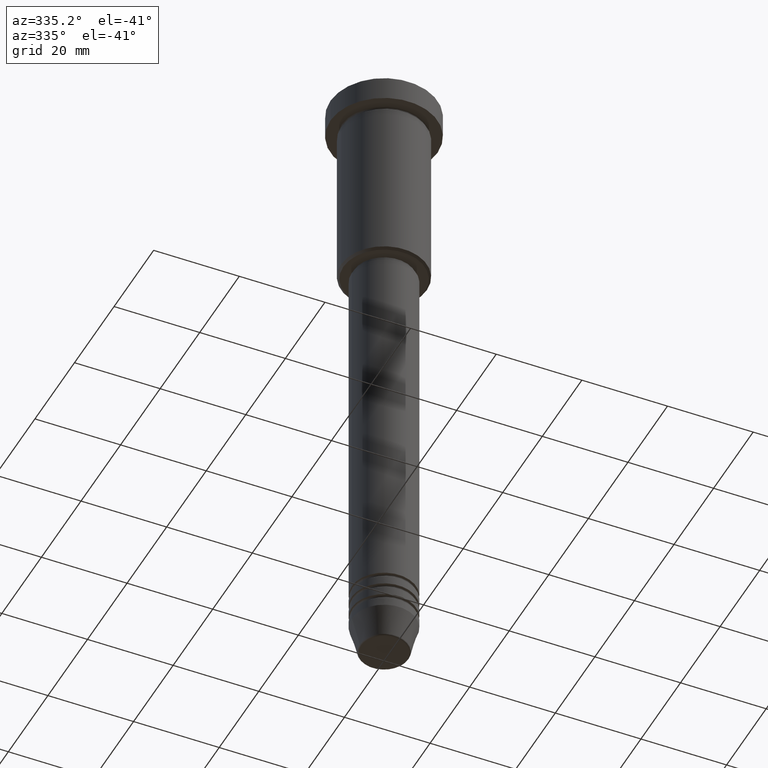
[diagram: clean part render]
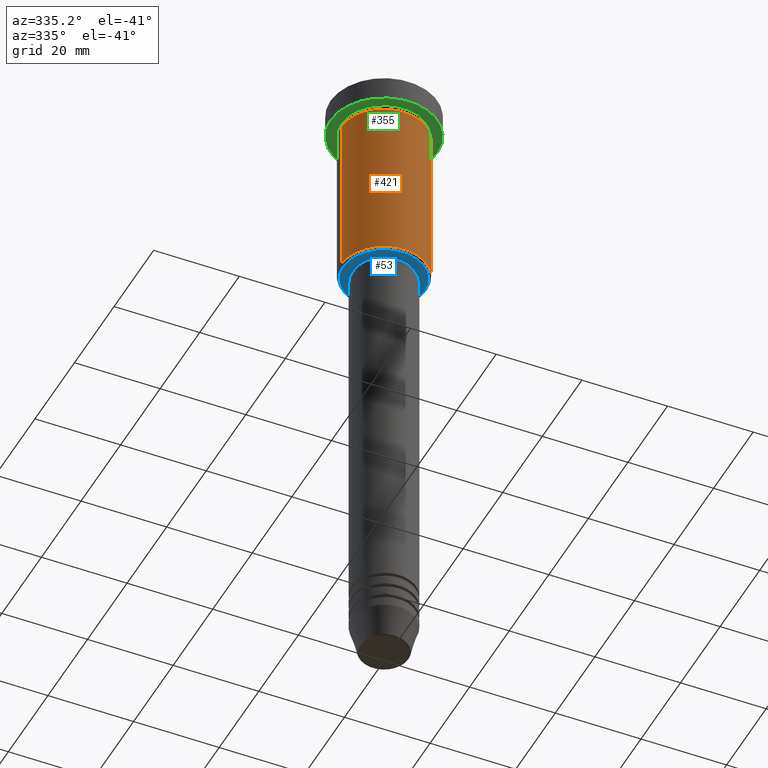
[diagram: same view with three faces highlighted in distinct colors, each labeled with its STEP entity id]
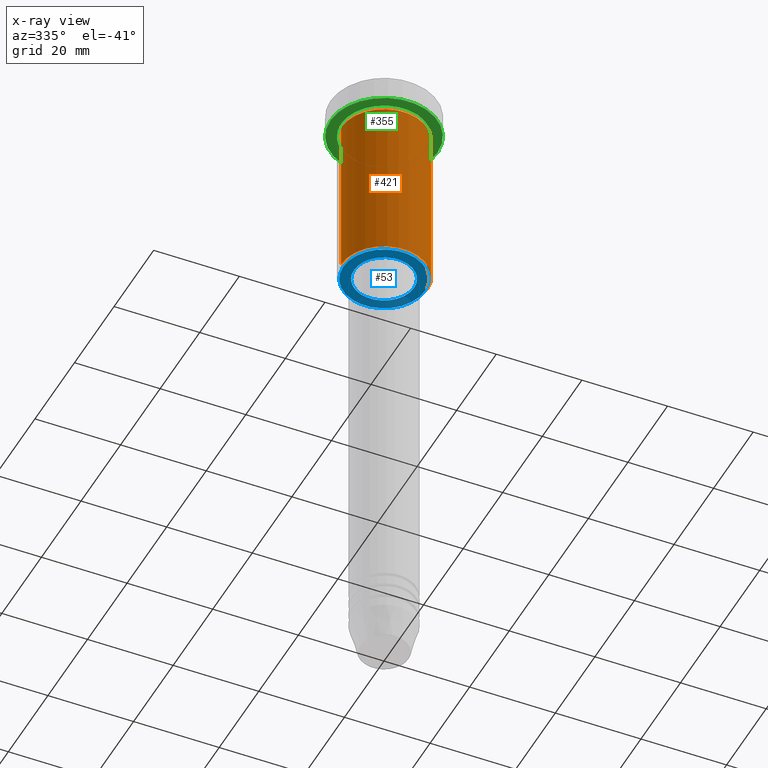
[diagram: x-ray of the same camera — body ghosted, the three highlighted faces saturated]
A machine part, auxiliary view with three faces highlighted in distinct colors.
The next image is the same camera in x-ray (body ghosted, the three faces saturated) — at least one of them is partly hidden behind the body in this view.
Their STEP definitions:

[orange] entity #421 — the highlighted cylindrical surface (partial cylindrical patch) has radius 10 mm, axis along (-0, -0, 1).
#3 = DIRECTION ( 'NONE',  ( 1.000000000000000000, 0.000000000000000000, 0.000000000000000000 ) ) ;
#6 = AXIS2_PLACEMENT_3D ( 'NONE', #1175, #903, #721 ) ;
#61 = EDGE_CURVE ( 'NONE', #418, #946, #139, .T. ) ;
#90 = FACE_OUTER_BOUND ( 'NONE', #367, .T. ) ;
#96 = DIRECTION ( 'NONE',  ( -0.000000000000000000, -0.000000000000000000, 1.000000000000000000 ) ) ;
#137 = ORIENTED_EDGE ( 'NONE', *, *, #723, .F. ) ;
#139 = CIRCLE ( 'NONE', #203, 10.00000000000000000 ) ;
#181 = DIRECTION ( 'NONE',  ( -0.000000000000000000, -0.000000000000000000, 1.000000000000000000 ) ) ;
#197 = DIRECTION ( 'NONE',  ( -0.000000000000000000, -0.000000000000000000, 1.000000000000000000 ) ) ;
#203 = AXIS2_PLACEMENT_3D ( 'NONE', #720, #181, #725 ) ;
#259 = VERTEX_POINT ( 'NONE', #1109 ) ;
#282 = CARTESIAN_POINT ( 'NONE',  ( -10.00000000000000000, 1.224646799147353256E-15, -45.50000000000001421 ) ) ;
#329 = AXIS2_PLACEMENT_3D ( 'NONE', #455, #197, #3 ) ;
#334 = VECTOR ( 'NONE', #96, 1000.000000000000000 ) ;
#337 = EDGE_CURVE ( 'NONE', #259, #898, #562, .T. ) ;
#367 = EDGE_LOOP ( 'NONE', ( #137, #964, #1065, #1029 ) ) ;
#377 = CYLINDRICAL_SURFACE ( 'NONE', #6, 10.00000000000000000 ) ;
#408 = VECTOR ( 'NONE', #727, 1000.000000000000000 ) ;
#418 = VERTEX_POINT ( 'NONE', #282 ) ;
#421 = ADVANCED_FACE ( 'NONE', ( #90 ), #377, .T. ) ;
#422 = EDGE_CURVE ( 'NONE', #946, #898, #1078, .T. ) ;
#455 = CARTESIAN_POINT ( 'NONE',  ( 0.000000000000000000, 0.000000000000000000, -6.999999999999996447 ) ) ;
#468 = CARTESIAN_POINT ( 'NONE',  ( 10.00000000000000000, 0.000000000000000000, -45.50000000000001421 ) ) ;
#562 = CIRCLE ( 'NONE', #329, 10.00000000000000000 ) ;
#720 = CARTESIAN_POINT ( 'NONE',  ( 0.000000000000000000, 0.000000000000000000, -45.50000000000001421 ) ) ;
#721 = DIRECTION ( 'NONE',  ( 1.000000000000000000, 0.000000000000000000, 0.000000000000000000 ) ) ;
#723 = EDGE_CURVE ( 'NONE', #418, #259, #1094, .T. ) ;
#725 = DIRECTION ( 'NONE',  ( -1.000000000000000000, 0.000000000000000000, 0.000000000000000000 ) ) ;
#727 = DIRECTION ( 'NONE',  ( -0.000000000000000000, -0.000000000000000000, 1.000000000000000000 ) ) ;
#898 = VERTEX_POINT ( 'NONE', #1093 ) ;
#903 = DIRECTION ( 'NONE',  ( -0.000000000000000000, -0.000000000000000000, 1.000000000000000000 ) ) ;
#946 = VERTEX_POINT ( 'NONE', #468 ) ;
#964 = ORIENTED_EDGE ( 'NONE', *, *, #61, .T. ) ;
#1029 = ORIENTED_EDGE ( 'NONE', *, *, #337, .F. ) ;
#1065 = ORIENTED_EDGE ( 'NONE', *, *, #422, .T. ) ;
#1078 = LINE ( 'NONE', #1085, #408 ) ;
#1085 = CARTESIAN_POINT ( 'NONE',  ( 10.00000000000000000, 0.000000000000000000, 0.000000000000000000 ) ) ;
#1088 = CARTESIAN_POINT ( 'NONE',  ( -10.00000000000000000, 1.224646799147353256E-15, 0.000000000000000000 ) ) ;
#1093 = CARTESIAN_POINT ( 'NONE',  ( 10.00000000000000000, 0.000000000000000000, -6.999999999999996447 ) ) ;
#1094 = LINE ( 'NONE', #1088, #334 ) ;
#1109 = CARTESIAN_POINT ( 'NONE',  ( -10.00000000000000000, 1.224646799147353256E-15, -6.999999999999996447 ) ) ;
#1175 = CARTESIAN_POINT ( 'NONE',  ( 0.000000000000000000, 0.000000000000000000, 0.000000000000000000 ) ) ;

[blue] entity #53 — the highlighted planar face has unit normal (0, 0, -1).
#9 = DIRECTION ( 'NONE',  ( -1.000000000000000000, 0.000000000000000000, -0.000000000000000000 ) ) ;
#45 = CARTESIAN_POINT ( 'NONE',  ( 0.000000000000000000, 0.000000000000000000, -45.99999999999998579 ) ) ;
#53 = ADVANCED_FACE ( 'NONE', ( #365, #816 ), #351, .T. ) ;
#63 = DIRECTION ( 'NONE',  ( 1.000000000000000000, 0.000000000000000000, 0.000000000000000000 ) ) ;
#102 = CARTESIAN_POINT ( 'NONE',  ( 6.999999999999999112, 0.000000000000000000, -45.99999999999998579 ) ) ;
#119 = DIRECTION ( 'NONE',  ( -0.000000000000000000, -0.000000000000000000, 1.000000000000000000 ) ) ;
#145 = VERTEX_POINT ( 'NONE', #102 ) ;
#169 = DIRECTION ( 'NONE',  ( -0.000000000000000000, -0.000000000000000000, 1.000000000000000000 ) ) ;
#222 = DIRECTION ( 'NONE',  ( 1.000000000000000000, 0.000000000000000000, 0.000000000000000000 ) ) ;
#240 = EDGE_CURVE ( 'NONE', #145, #959, #1163, .T. ) ;
#264 = CARTESIAN_POINT ( 'NONE',  ( 0.000000000000000000, 10.00000000000000000, -45.99999999999998579 ) ) ;
#277 = ORIENTED_EDGE ( 'NONE', *, *, #1154, .T. ) ;
#308 = CARTESIAN_POINT ( 'NONE',  ( 0.000000000000000000, 0.000000000000000000, -45.99999999999998579 ) ) ;
#310 = EDGE_CURVE ( 'NONE', #778, #806, #766, .T. ) ;
#326 = ORIENTED_EDGE ( 'NONE', *, *, #240, .T. ) ;
#351 = PLANE ( 'NONE',  #995 ) ;
#365 = FACE_OUTER_BOUND ( 'NONE', #378, .T. ) ;
#378 = EDGE_LOOP ( 'NONE', ( #586, #277 ) ) ;
#384 = CARTESIAN_POINT ( 'NONE',  ( -6.999999999999999112, 8.572527594031472204E-16, -45.99999999999998579 ) ) ;
#423 = AXIS2_PLACEMENT_3D ( 'NONE', #308, #119, #222 ) ;
#460 = DIRECTION ( 'NONE',  ( 0.000000000000000000, 0.000000000000000000, -1.000000000000000000 ) ) ;
#495 = DIRECTION ( 'NONE',  ( 0.000000000000000000, 0.000000000000000000, -1.000000000000000000 ) ) ;
#586 = ORIENTED_EDGE ( 'NONE', *, *, #310, .T. ) ;
#590 = EDGE_CURVE ( 'NONE', #959, #145, #736, .T. ) ;
#605 = CARTESIAN_POINT ( 'NONE',  ( 0.000000000000000000, 0.000000000000000000, -45.99999999999998579 ) ) ;
#666 = ORIENTED_EDGE ( 'NONE', *, *, #590, .T. ) ;
#685 = EDGE_LOOP ( 'NONE', ( #326, #666 ) ) ;
#736 = CIRCLE ( 'NONE', #832, 6.999999999999999112 ) ;
#737 = CIRCLE ( 'NONE', #888, 9.500000000000035527 ) ;
#766 = CIRCLE ( 'NONE', #1147, 9.500000000000035527 ) ;
#778 = VERTEX_POINT ( 'NONE', #1178 ) ;
#806 = VERTEX_POINT ( 'NONE', #1020 ) ;
#816 = FACE_BOUND ( 'NONE', #685, .T. ) ;
#832 = AXIS2_PLACEMENT_3D ( 'NONE', #605, #169, #63 ) ;
#870 = DIRECTION ( 'NONE',  ( 0.000000000000000000, 0.000000000000000000, -1.000000000000000000 ) ) ;
#888 = AXIS2_PLACEMENT_3D ( 'NONE', #1122, #870, #1140 ) ;
#949 = DIRECTION ( 'NONE',  ( -1.000000000000000000, 0.000000000000000000, 0.000000000000000000 ) ) ;
#959 = VERTEX_POINT ( 'NONE', #384 ) ;
#995 = AXIS2_PLACEMENT_3D ( 'NONE', #264, #460, #9 ) ;
#1020 = CARTESIAN_POINT ( 'NONE',  ( -9.500000000000035527, 1.194030629168671639E-15, -45.99999999999998579 ) ) ;
#1122 = CARTESIAN_POINT ( 'NONE',  ( 0.000000000000000000, 0.000000000000000000, -45.99999999999998579 ) ) ;
#1140 = DIRECTION ( 'NONE',  ( -1.000000000000000000, 0.000000000000000000, 0.000000000000000000 ) ) ;
#1147 = AXIS2_PLACEMENT_3D ( 'NONE', #45, #495, #949 ) ;
#1154 = EDGE_CURVE ( 'NONE', #806, #778, #737, .T. ) ;
#1163 = CIRCLE ( 'NONE', #423, 6.999999999999999112 ) ;
#1178 = CARTESIAN_POINT ( 'NONE',  ( 9.500000000000035527, 0.000000000000000000, -45.99999999999998579 ) ) ;

[green] entity #355 — the highlighted planar face has unit normal (0, 0, -1).
#11 = DIRECTION ( 'NONE',  ( -1.000000000000000000, 0.000000000000000000, -0.000000000000000000 ) ) ;
#17 = EDGE_CURVE ( 'NONE', #1061, #1106, #62, .T. ) ;
#21 = CARTESIAN_POINT ( 'NONE',  ( 0.000000000000000000, 0.000000000000000000, -5.999999999999996447 ) ) ;
#56 = CARTESIAN_POINT ( 'NONE',  ( 0.000000000000000000, 0.000000000000000000, -5.999999999999996447 ) ) ;
#62 = CIRCLE ( 'NONE', #1033, 12.50000000000000000 ) ;
#126 = CARTESIAN_POINT ( 'NONE',  ( 12.50000000000000000, 0.000000000000000000, -5.999999999999996447 ) ) ;
#150 = ORIENTED_EDGE ( 'NONE', *, *, #290, .T. ) ;
#163 = CARTESIAN_POINT ( 'NONE',  ( -10.00000000000000000, 0.000000000000000000, -5.999999999999996447 ) ) ;
#192 = EDGE_LOOP ( 'NONE', ( #1124, #150 ) ) ;
#225 = CARTESIAN_POINT ( 'NONE',  ( -12.50000000000000000, 1.530808498934191521E-15, -5.999999999999996447 ) ) ;
#257 = DIRECTION ( 'NONE',  ( -0.000000000000000000, -0.000000000000000000, 1.000000000000000000 ) ) ;
#278 = DIRECTION ( 'NONE',  ( -0.000000000000000000, -0.000000000000000000, 1.000000000000000000 ) ) ;
#290 = EDGE_CURVE ( 'NONE', #1040, #472, #996, .T. ) ;
#355 = ADVANCED_FACE ( 'NONE', ( #557, #648 ), #530, .T. ) ;
#411 = DIRECTION ( 'NONE',  ( 1.000000000000000000, 0.000000000000000000, 0.000000000000000000 ) ) ;
#442 = CARTESIAN_POINT ( 'NONE',  ( 0.000000000000000000, 12.50000000000000000, -5.999999999999996447 ) ) ;
#465 = AXIS2_PLACEMENT_3D ( 'NONE', #442, #629, #11 ) ;
#472 = VERTEX_POINT ( 'NONE', #163 ) ;
#475 = EDGE_LOOP ( 'NONE', ( #498, #708 ) ) ;
#488 = CIRCLE ( 'NONE', #774, 10.00000000000000000 ) ;
#498 = ORIENTED_EDGE ( 'NONE', *, *, #662, .F. ) ;
#530 = PLANE ( 'NONE',  #465 ) ;
#557 = FACE_BOUND ( 'NONE', #192, .T. ) ;
#567 = CIRCLE ( 'NONE', #958, 12.50000000000000000 ) ;
#606 = DIRECTION ( 'NONE',  ( -0.000000000000000000, -0.000000000000000000, 1.000000000000000000 ) ) ;
#629 = DIRECTION ( 'NONE',  ( 0.000000000000000000, 0.000000000000000000, -1.000000000000000000 ) ) ;
#648 = FACE_OUTER_BOUND ( 'NONE', #475, .T. ) ;
#650 = DIRECTION ( 'NONE',  ( -1.000000000000000000, 0.000000000000000000, 0.000000000000000000 ) ) ;
#662 = EDGE_CURVE ( 'NONE', #1106, #1061, #567, .T. ) ;
#669 = DIRECTION ( 'NONE',  ( -1.000000000000000000, 0.000000000000000000, 0.000000000000000000 ) ) ;
#691 = DIRECTION ( 'NONE',  ( 1.000000000000000000, 0.000000000000000000, 0.000000000000000000 ) ) ;
#708 = ORIENTED_EDGE ( 'NONE', *, *, #17, .F. ) ;
#742 = CARTESIAN_POINT ( 'NONE',  ( 0.000000000000000000, 0.000000000000000000, -5.999999999999996447 ) ) ;
#750 = DIRECTION ( 'NONE',  ( -0.000000000000000000, -0.000000000000000000, 1.000000000000000000 ) ) ;
#774 = AXIS2_PLACEMENT_3D ( 'NONE', #742, #278, #650 ) ;
#891 = CARTESIAN_POINT ( 'NONE',  ( 0.000000000000000000, 0.000000000000000000, -5.999999999999996447 ) ) ;
#914 = EDGE_CURVE ( 'NONE', #472, #1040, #488, .T. ) ;
#921 = AXIS2_PLACEMENT_3D ( 'NONE', #21, #750, #669 ) ;
#958 = AXIS2_PLACEMENT_3D ( 'NONE', #56, #257, #691 ) ;
#996 = CIRCLE ( 'NONE', #921, 10.00000000000000000 ) ;
#1033 = AXIS2_PLACEMENT_3D ( 'NONE', #891, #606, #411 ) ;
#1040 = VERTEX_POINT ( 'NONE', #1133 ) ;
#1061 = VERTEX_POINT ( 'NONE', #225 ) ;
#1106 = VERTEX_POINT ( 'NONE', #126 ) ;
#1124 = ORIENTED_EDGE ( 'NONE', *, *, #914, .T. ) ;
#1133 = CARTESIAN_POINT ( 'NONE',  ( 10.00000000000000000, 1.224646799147353256E-15, -5.999999999999996447 ) ) ;